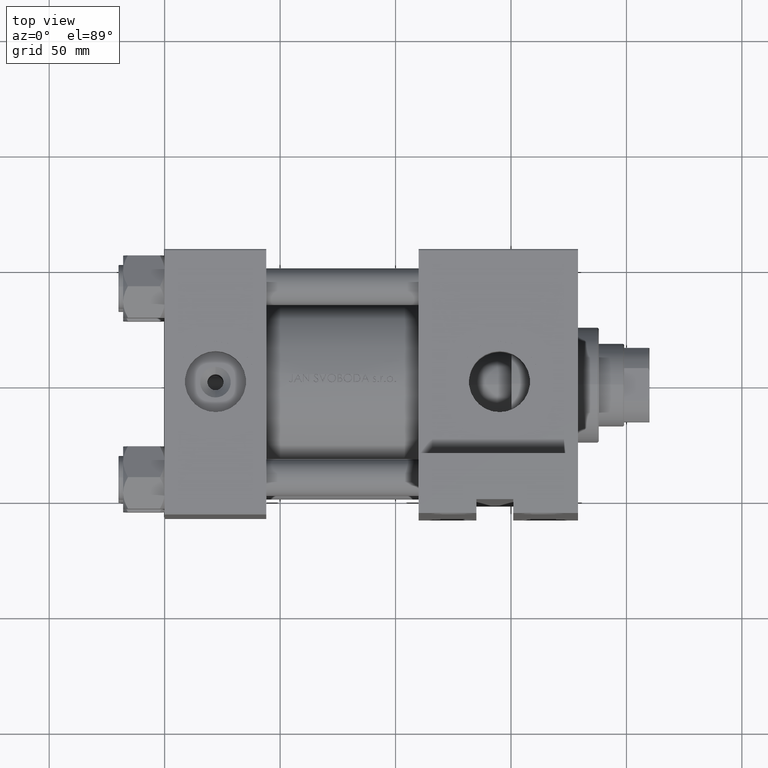
[diagram: clean part render]
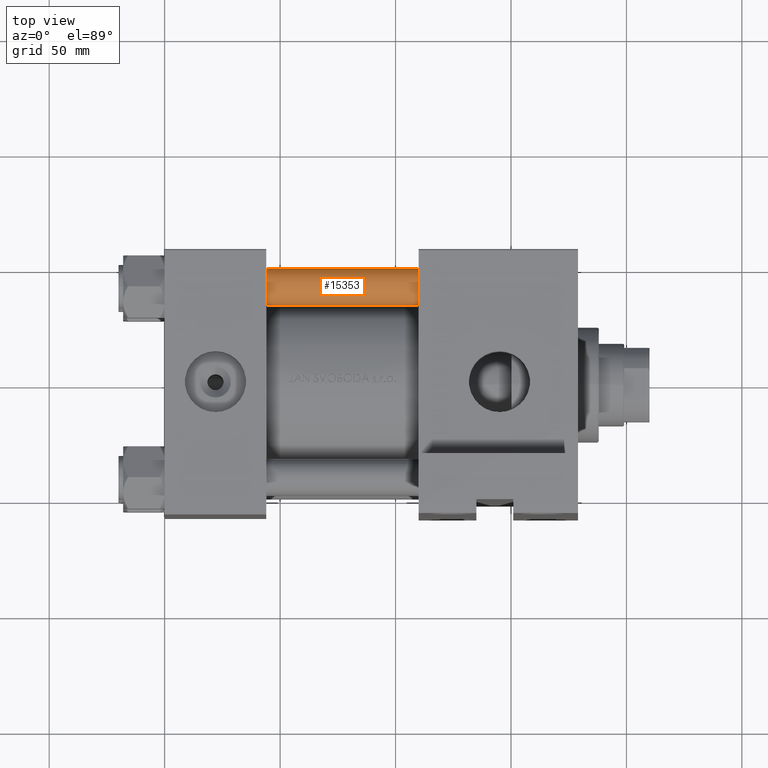
[diagram: same view with one face highlighted and labeled with its STEP entity id]
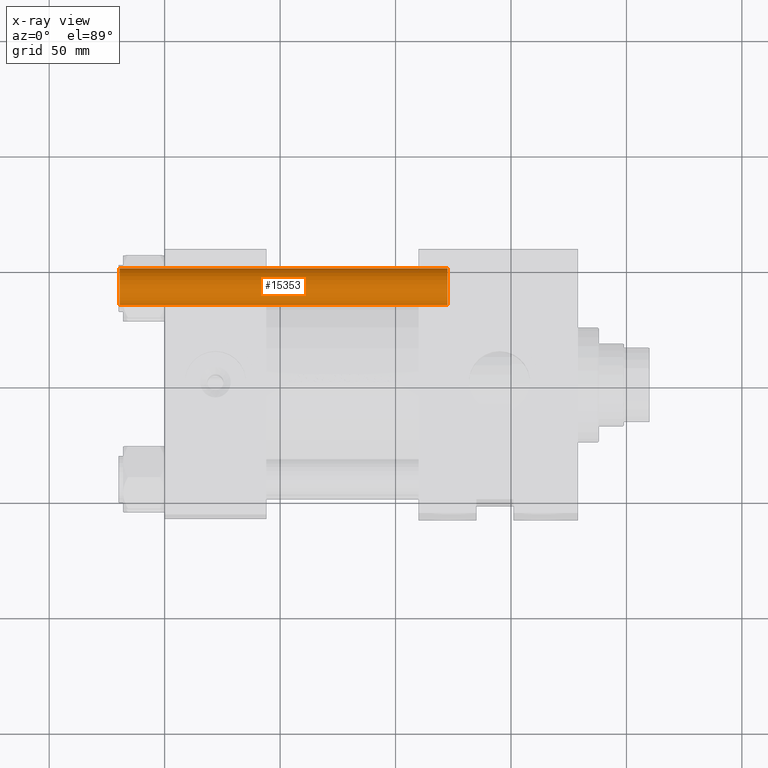
[diagram: x-ray of the same camera — body ghosted, the highlighted face saturated]
A machine part, top view. The second image highlights one B-rep face of the part: STEP entity #15353.
The next image is the same camera in x-ray: the body ghosted, the highlighted face saturated — about 0% of this face is hidden behind the body in this view.
In plain terms, the highlighted cylindrical surface (edge-blend (fillet) strip) has radius 8 mm, axis along (1, -0, 0).
Its self-contained STEP definition (entity closure, byte-faithful):
#1068 = CARTESIAN_POINT ( 'NONE',  ( -8.000000000000000000, 0.000000000000000000, 143.0000000000000000 ) ) ;
#1560 = CARTESIAN_POINT ( 'NONE',  ( 0.000000000000000000, 0.000000000000000000, 0.4999999999999726885 ) ) ;
#2405 = EDGE_CURVE ( 'NONE', #16800, #20729, #9331, .T. ) ;
#4578 = CIRCLE ( 'NONE', #14701, 8.000000000000000000 ) ;
#5112 = LINE ( 'NONE', #20662, #45064 ) ;
#5681 = DIRECTION ( 'NONE',  ( -0.000000000000000000, -0.000000000000000000, -1.000000000000000000 ) ) ;
#7135 = CARTESIAN_POINT ( 'NONE',  ( -8.000000000000000000, 0.000000000000000000, 0.4999999999999726885 ) ) ;
#9331 = LINE ( 'NONE', #1068, #11116 ) ;
#11005 = EDGE_CURVE ( 'NONE', #14212, #16800, #4578, .T. ) ;
#11116 = VECTOR ( 'NONE', #5681, 1000.000000000000000 ) ;
#11271 = FACE_OUTER_BOUND ( 'NONE', #22058, .T. ) ;
#14212 = VERTEX_POINT ( 'NONE', #38577 ) ;
#14701 = AXIS2_PLACEMENT_3D ( 'NONE', #33040, #22069, #36433 ) ;
#15353 = ADVANCED_FACE ( 'NONE', ( #11271 ), #29749, .T. ) ;
#15973 = ORIENTED_EDGE ( 'NONE', *, *, #2405, .T. ) ;
#16800 = VERTEX_POINT ( 'NONE', #44590 ) ;
#17984 = EDGE_CURVE ( 'NONE', #20729, #46403, #42069, .T. ) ;
#19983 = CARTESIAN_POINT ( 'NONE',  ( 8.000000000000000000, 9.797174393178825657E-16, 0.4999999999999726885 ) ) ;
#20662 = CARTESIAN_POINT ( 'NONE',  ( 8.000000000000000000, 9.797174393178825657E-16, 143.0000000000000000 ) ) ;
#20729 = VERTEX_POINT ( 'NONE', #7135 ) ;
#21098 = AXIS2_PLACEMENT_3D ( 'NONE', #1560, #24410, #27569 ) ;
#22058 = EDGE_LOOP ( 'NONE', ( #33962, #34931, #15973, #33733 ) ) ;
#22069 = DIRECTION ( 'NONE',  ( 0.000000000000000000, 0.000000000000000000, -1.000000000000000000 ) ) ;
#24410 = DIRECTION ( 'NONE',  ( -0.000000000000000000, -0.000000000000000000, 1.000000000000000000 ) ) ;
#26793 = DIRECTION ( 'NONE',  ( -1.000000000000000000, 0.000000000000000000, 0.000000000000000000 ) ) ;
#27569 = DIRECTION ( 'NONE',  ( 1.000000000000000000, 0.000000000000000000, 0.000000000000000000 ) ) ;
#29749 = CYLINDRICAL_SURFACE ( 'NONE', #40456, 8.000000000000000000 ) ;
#33040 = CARTESIAN_POINT ( 'NONE',  ( 0.000000000000000000, 0.000000000000000000, 142.4999999999999716 ) ) ;
#33733 = ORIENTED_EDGE ( 'NONE', *, *, #17984, .T. ) ;
#33876 = CARTESIAN_POINT ( 'NONE',  ( 0.000000000000000000, 0.000000000000000000, 143.0000000000000000 ) ) ;
#33962 = ORIENTED_EDGE ( 'NONE', *, *, #38456, .F. ) ;
#34931 = ORIENTED_EDGE ( 'NONE', *, *, #11005, .T. ) ;
#35496 = DIRECTION ( 'NONE',  ( -0.000000000000000000, -0.000000000000000000, -1.000000000000000000 ) ) ;
#36433 = DIRECTION ( 'NONE',  ( 1.000000000000000000, 0.000000000000000000, 0.000000000000000000 ) ) ;
#37517 = DIRECTION ( 'NONE',  ( -0.000000000000000000, -0.000000000000000000, -1.000000000000000000 ) ) ;
#38456 = EDGE_CURVE ( 'NONE', #14212, #46403, #5112, .T. ) ;
#38577 = CARTESIAN_POINT ( 'NONE',  ( 8.000000000000000000, 9.797174393178825657E-16, 142.4999999999999716 ) ) ;
#40456 = AXIS2_PLACEMENT_3D ( 'NONE', #33876, #37517, #26793 ) ;
#42069 = CIRCLE ( 'NONE', #21098, 8.000000000000000000 ) ;
#44590 = CARTESIAN_POINT ( 'NONE',  ( -8.000000000000000000, 0.000000000000000000, 142.4999999999999716 ) ) ;
#45064 = VECTOR ( 'NONE', #35496, 1000.000000000000000 ) ;
#46403 = VERTEX_POINT ( 'NONE', #19983 ) ;